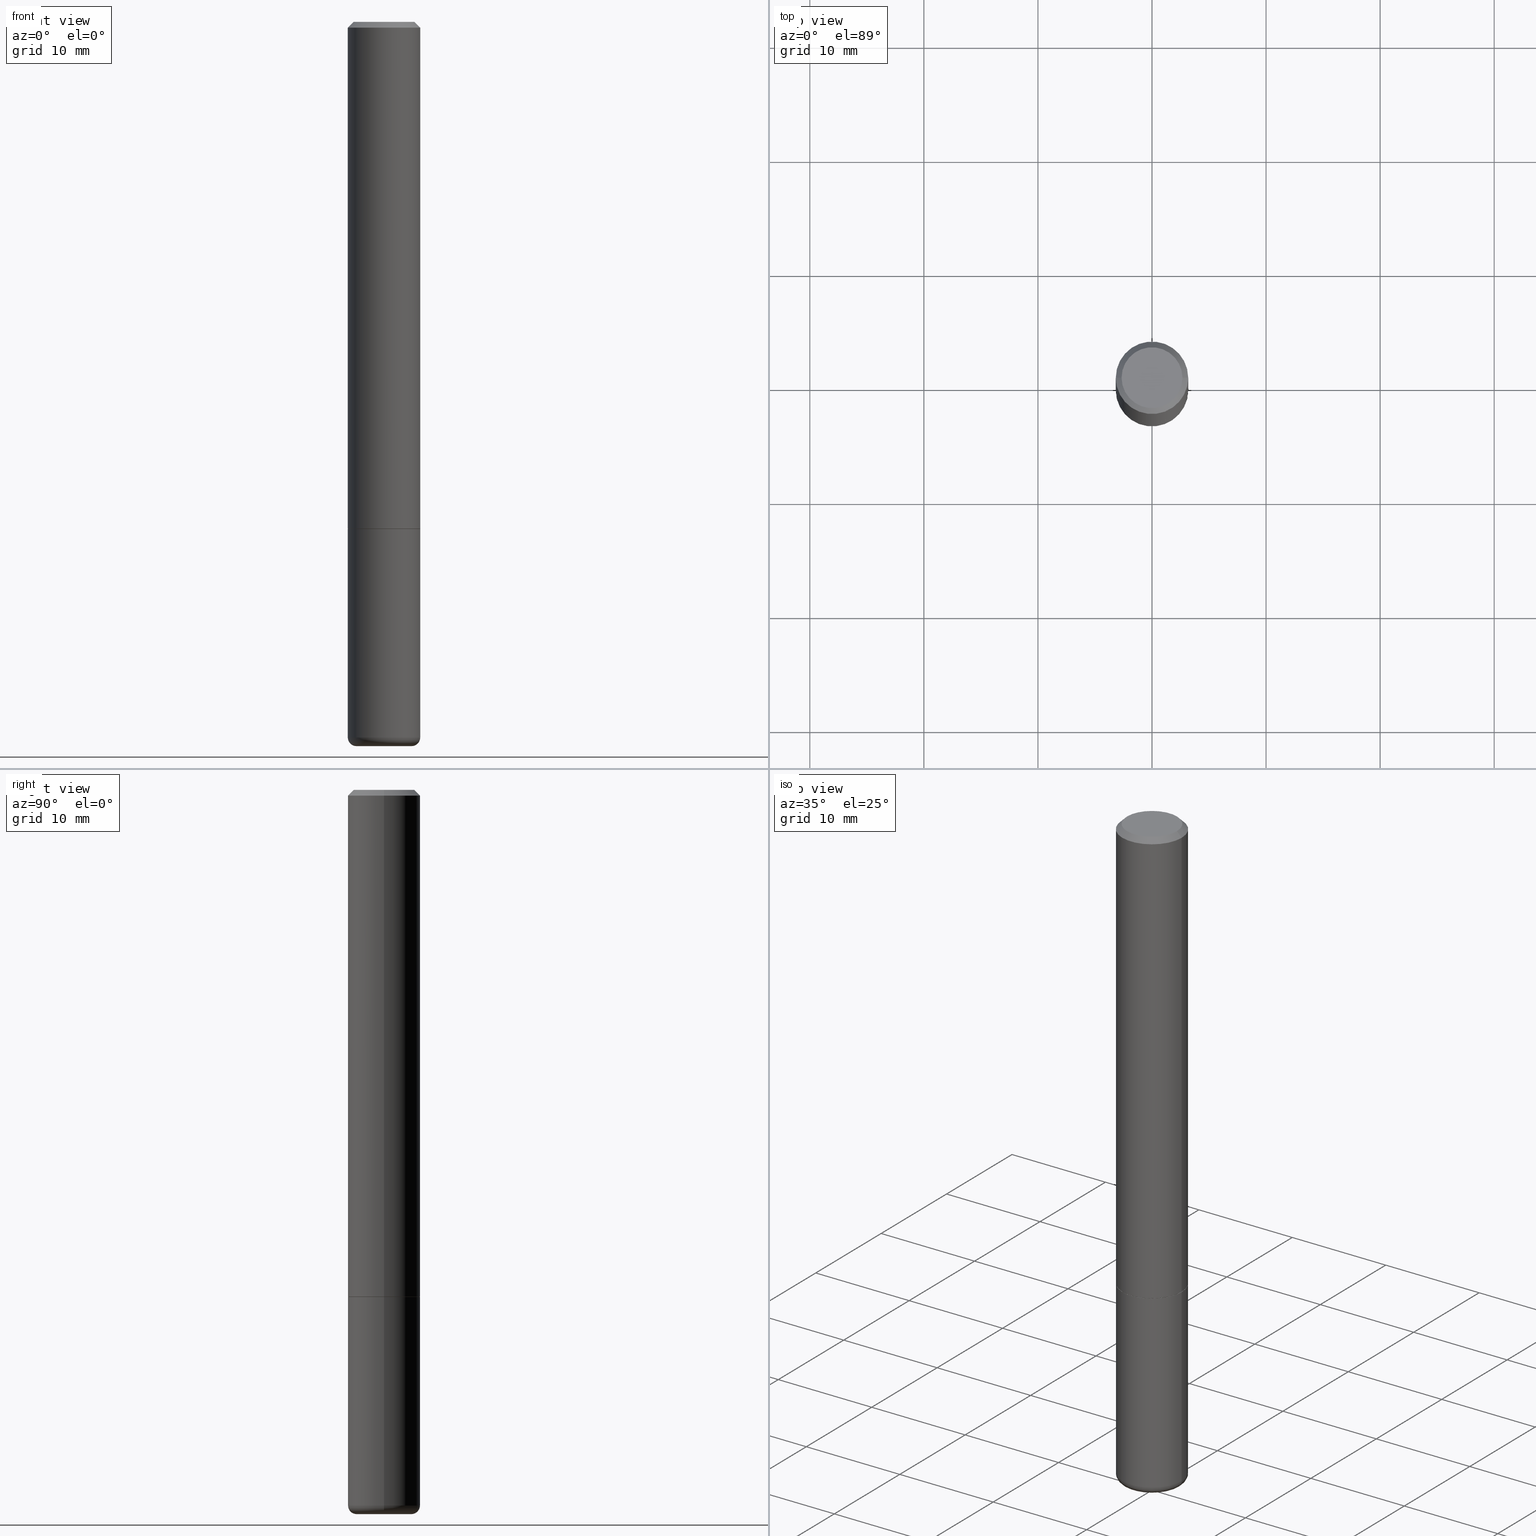
[diagram: canonical four-view strip — front | top / right | iso, engineering-drawing reading convention]
A machine part, canonical four-view strip (front | top / right | iso — engineering-drawing reading convention). The complete STEP part file that produces these views, byte-faithful:
ISO-10303-21;
HEADER;
FILE_DESCRIPTION (( 'STEP AP203' ),
    '1' );
FILE_NAME ('77121.STEP',
    '2024-03-06T16:03:30',
    ( '' ),
    ( '' ),
    'SwSTEP 2.0',
    'SolidWorks 2023',
    '' );
FILE_SCHEMA (( 'CONFIG_CONTROL_DESIGN' ));
ENDSEC;

DATA;
#1 = CARTESIAN_POINT ( 'NONE',  ( 0.000000000000000000, 0.000000000000000000, 0.000000000000000000 ) ) ;
#2 = CIRCLE ( 'NONE', #172, 0.1239999999999999991 ) ;
#3 = PERSON_AND_ORGANIZATION ( #24, #7 ) ;
#4 = COORDINATED_UNIVERSAL_TIME_OFFSET ( 5, 0, .BEHIND. ) ;
#5 = DATE_AND_TIME ( #40, #278 ) ;
#6 = AXIS2_PLACEMENT_3D ( 'NONE', #9, #111, #242 ) ;
#7 = ORGANIZATION ( 'UNSPECIFIED', 'UNSPECIFIED', '' ) ;
#8 = EDGE_LOOP ( 'NONE', ( #301, #102 ) ) ;
#9 = CARTESIAN_POINT ( 'NONE',  ( -0.09499999999999998723, -7.948943307970475008E-15, -2.470000000000000195 ) ) ;
#10 = EDGE_LOOP ( 'NONE', ( #18, #191, #299, #162 ) ) ;
#11 = DIRECTION ( 'NONE',  ( -2.445468806185136597E-29, 3.491481338843145583E-15, 1.000000000000000000 ) ) ;
#12 = LINE ( 'NONE', #378, #349 ) ;
#13 = CIRCLE ( 'NONE', #297, 0.1250000000000000000 ) ;
#14 = FACE_OUTER_BOUND ( 'NONE', #46, .T. ) ;
#15 = ADVANCED_FACE ( 'NONE', ( #76 ), #238, .T. ) ;
#16 = ADVANCED_FACE ( 'NONE', ( #328 ), #403, .T. ) ;
#17 = ORIENTED_EDGE ( 'NONE', *, *, #356, .T. ) ;
#18 = ORIENTED_EDGE ( 'NONE', *, *, #352, .F. ) ;
#19 = DIRECTION ( 'NONE',  ( -1.000000000000000000, 6.982962677686265922E-15, -4.876176775795935793E-29 ) ) ;
#20 = CARTESIAN_POINT ( 'NONE',  ( 0.1239999999999999991, -6.975979715008601207E-15, -1.750000000000000000 ) ) ;
#21 = DIRECTION ( 'NONE',  ( 1.000000000000000000, -6.982962677686266711E-15, 4.876176775795935793E-29 ) ) ;
#22 = AXIS2_PLACEMENT_3D ( 'NONE', #64, #288, #156 ) ;
#23 = MANIFOLD_SOLID_BREP ( 'Body-Move/Copy2[2]', #121 ) ;
#24 = PERSON ( 'UNSPECIFIED', 'UNSPECIFIED', 'UNSPECIFIED', ('UNSPECIFIED'), ('UNSPECIFIED'), ('UNSPECIFIED') ) ;
#25 = CARTESIAN_POINT ( 'NONE',  ( 4.277124942017804562E-29, -6.106600861636661664E-15, -1.749000000000000110 ) ) ;
#26 = CARTESIAN_POINT ( 'NONE',  ( 1.252621697202263706E-45, -1.788411804456536750E-31, -5.122214988120493535E-17 ) ) ;
#27 = DIRECTION ( 'NONE',  ( 1.000000000000000000, -6.982962677686270655E-15, 0.000000000000000000 ) ) ;
#28 = CARTESIAN_POINT ( 'NONE',  ( 0.1250000000000000000, -6.982962677686288010E-15, -1.750000000000000222 ) ) ;
#29 = DIRECTION ( 'NONE',  ( 1.000000000000000000, -6.982962677686262766E-15, 0.000000000000000000 ) ) ;
#30 = DIRECTION ( 'NONE',  ( -2.445468806185136597E-29, 3.491481338843145583E-15, 1.000000000000000000 ) ) ;
#31 = AXIS2_PLACEMENT_3D ( 'NONE', #152, #312, #408 ) ;
#32 = DIRECTION ( 'NONE',  ( 1.000000000000000000, -6.982962677686262766E-15, 0.000000000000000000 ) ) ;
#33 = LINE ( 'NONE', #231, #195 ) ;
#34 = ORIENTED_EDGE ( 'NONE', *, *, #131, .T. ) ;
#35 = ORIENTED_EDGE ( 'NONE', *, *, #73, .T. ) ;
#36 = ADVANCED_FACE ( 'NONE', ( #77 ), #38, .T. ) ;
#37 = PERSON_AND_ORGANIZATION_ROLE ( 'creator' ) ;
#38 = TOROIDAL_SURFACE ( 'NONE', #272, 0.09499999999999998723, 0.02999999999999997807 ) ;
#39 = APPROVAL_ROLE ( '' ) ;
#40 = CALENDAR_DATE ( 2024, 6, 3 ) ;
#41 = ADVANCED_FACE ( 'NONE', ( #400 ), #87, .T. ) ;
#42 = ORIENTED_EDGE ( 'NONE', *, *, #289, .F. ) ;
#43 = AXIS2_PLACEMENT_3D ( 'NONE', #54, #176, #19 ) ;
#44 = CIRCLE ( 'NONE', #397, 0.1250000000000000000 ) ;
#45 = DATE_AND_TIME ( #212, #252 ) ;
#46 = EDGE_LOOP ( 'NONE', ( #359, #323 ) ) ;
#47 = ORIENTED_EDGE ( 'NONE', *, *, #208, .T. ) ;
#48 = CC_DESIGN_PERSON_AND_ORGANIZATION_ASSIGNMENT ( #126, #264, ( #262 ) ) ;
#49 = EDGE_LOOP ( 'NONE', ( #290, #34 ) ) ;
#50 = VECTOR ( 'NONE', #300, 39.37007874015748143 ) ;
#51 = SECURITY_CLASSIFICATION ( '', '', #205 ) ;
#52 = APPROVAL_STATUS ( 'not_yet_approved' ) ;
#53 = ORIENTED_EDGE ( 'NONE', *, *, #78, .T. ) ;
#54 = CARTESIAN_POINT ( 'NONE',  ( 4.279570410823989044E-29, -6.110092342975505460E-15, -1.750000000000000222 ) ) ;
#55 = FACE_OUTER_BOUND ( 'NONE', #257, .T. ) ;
#56 = FACE_OUTER_BOUND ( 'NONE', #353, .T. ) ;
#57 = VECTOR ( 'NONE', #351, 39.37007874015748143 ) ;
#58 = CARTESIAN_POINT ( 'NONE',  ( 4.890937612370288923E-31, -6.982962677686312563E-17, -0.02000000000000006287 ) ) ;
#59 = CARTESIAN_POINT ( 'NONE',  ( -0.1250000000000001943, -2.200036824506633304E-15, -1.749000000000000110 ) ) ;
#60 = DIRECTION ( 'NONE',  ( -0.7071067811866863506, 7.493145998870855876E-15, 0.7071067811864086838 ) ) ;
#61 = LINE ( 'NONE', #374, #251 ) ;
#62 = ADVANCED_FACE ( 'NONE', ( #81 ), #209, .T. ) ;
#63 = EDGE_CURVE ( 'NONE', #381, #139, #113, .T. ) ;
#64 = CARTESIAN_POINT ( 'NONE',  ( 4.279570410823989044E-29, -6.110092342975505460E-15, -1.750000000000000222 ) ) ;
#65 = CIRCLE ( 'NONE', #354, 0.02999999999999997113 ) ;
#66 = EDGE_CURVE ( 'NONE', #366, #265, #394, .T. ) ;
#67 = VERTEX_POINT ( 'NONE', #223 ) ;
#68 = AXIS2_PLACEMENT_3D ( 'NONE', #222, #214, #21 ) ;
#69 = ORIENTED_EDGE ( 'NONE', *, *, #179, .F. ) ;
#70 = APPROVAL_STATUS ( 'not_yet_approved' ) ;
#71 = ORIENTED_EDGE ( 'NONE', *, *, #163, .F. ) ;
#72 = CARTESIAN_POINT ( 'NONE',  ( 0.1250000000000000555, -8.728703347107838319E-16, 6.095220969744923244E-30 ) ) ;
#73 = EDGE_CURVE ( 'NONE', #97, #366, #33, .T. ) ;
#74 = ORIENTED_EDGE ( 'NONE', *, *, #99, .T. ) ;
#75 = CARTESIAN_POINT ( 'NONE',  ( 0.1239999999999999991, -6.975979715008601207E-15, -1.750000000000000000 ) ) ;
#76 = FACE_OUTER_BOUND ( 'NONE', #193, .T. ) ;
#77 = FACE_OUTER_BOUND ( 'NONE', #271, .T. ) ;
#78 = EDGE_CURVE ( 'NONE', #104, #381, #320, .T. ) ;
#79 = APPROVAL_ROLE ( '' ) ;
#80 = DIRECTION ( 'NONE',  ( 1.000000000000000000, -6.982962677686273021E-15, 4.883557194083114583E-29 ) ) ;
#81 = FACE_OUTER_BOUND ( 'NONE', #270, .T. ) ;
#82 = DIRECTION ( 'NONE',  ( 1.000000000000000000, -6.982962677686273021E-15, 4.883557194083114583E-29 ) ) ;
#83 = CARTESIAN_POINT ( 'NONE',  ( 6.113672015462842613E-29, -8.728703347107864943E-15, -2.500000000000000000 ) ) ;
#84 = UNCERTAINTY_MEASURE_WITH_UNIT (LENGTH_MEASURE( 1.000000000000000082E-05 ), #380, 'distance_accuracy_value', 'NONE');
#85 = CYLINDRICAL_SURFACE ( 'NONE', #180, 0.1250000000000000555 ) ;
#86 = DIRECTION ( 'NONE',  ( 1.000000000000000000, -6.982962677686267499E-15, 0.000000000000000000 ) ) ;
#87 = CONICAL_SURFACE ( 'NONE', #219, 0.1249999999999999584, 0.7853981633974460586 ) ;
#88 = AXIS2_PLACEMENT_3D ( 'NONE', #253, #151, #317 ) ;
#89 = CARTESIAN_POINT ( 'NONE',  ( 0.1250000000000001943, -6.979471196347446580E-15, -1.749000000000000110 ) ) ;
#90 = DIRECTION ( 'NONE',  ( 1.000000000000000000, -6.982962677686273021E-15, 0.000000000000000000 ) ) ;
#91 =( NAMED_UNIT ( * ) SI_UNIT ( $, .STERADIAN. ) SOLID_ANGLE_UNIT ( ) );
#92 = ORIENTED_EDGE ( 'NONE', *, *, #226, .F. ) ;
#93 = CARTESIAN_POINT ( 'NONE',  ( 4.890937612370288923E-31, -6.982962677686312563E-17, -0.02000000000000006287 ) ) ;
#94 = AXIS2_PLACEMENT_3D ( 'NONE', #83, #399, #134 ) ;
#95 = PRODUCT_DEFINITION_FORMATION_WITH_SPECIFIED_SOURCE ( 'ANY', '', #262, .NOT_KNOWN. ) ;
#96 = CONICAL_SURFACE ( 'NONE', #286, 0.1239999999999999991, 0.7853981633976446775 ) ;
#97 = VERTEX_POINT ( 'NONE', #360 ) ;
#98 = LOCAL_TIME ( 11, 3, 30.00000000000000000, #4 ) ;
#99 = EDGE_CURVE ( 'NONE', #139, #366, #12, .T. ) ;
#100 = CC_DESIGN_PERSON_AND_ORGANIZATION_ASSIGNMENT ( #327, #170, ( #95 ) ) ;
#101 = CALENDAR_DATE ( 2024, 6, 3 ) ;
#102 = ORIENTED_EDGE ( 'NONE', *, *, #194, .F. ) ;
#103 = CARTESIAN_POINT ( 'NONE',  ( -0.1250000000000000000, -6.478847205258913284E-15, -1.750000000000000222 ) ) ;
#104 = VERTEX_POINT ( 'NONE', #20 ) ;
#105 = ADVANCED_FACE ( 'NONE', ( #14 ), #258, .F. ) ;
#106 = ORIENTED_EDGE ( 'NONE', *, *, #401, .F. ) ;
#107 = AXIS2_PLACEMENT_3D ( 'NONE', #93, #190, #282 ) ;
#108 = APPROVAL_PERSON_ORGANIZATION ( #332, #187, #79 ) ;
#109 = DATE_TIME_ROLE ( 'classification_date' ) ;
#110 = ORIENTED_EDGE ( 'NONE', *, *, #66, .T. ) ;
#111 = DIRECTION ( 'NONE',  ( 7.105427357601001859E-15, 1.000000000000000000, -3.491481338843145583E-15 ) ) ;
#112 = ORIENTED_EDGE ( 'NONE', *, *, #78, .F. ) ;
#113 = CIRCLE ( 'NONE', #245, 0.1250000000000001943 ) ;
#114 = AXIS2_PLACEMENT_3D ( 'NONE', #1, #196, #161 ) ;
#115 = DIRECTION ( 'NONE',  ( -2.445468806185136877E-29, 3.491481338843145188E-15, 1.000000000000000000 ) ) ;
#116 = CARTESIAN_POINT ( 'NONE',  ( -0.09499999999999998723, -7.894734117689107359E-15, -2.500000000000000000 ) ) ;
#117 = CARTESIAN_POINT ( 'NONE',  ( 4.279570410823989044E-29, -6.110092342975505460E-15, -1.750000000000000222 ) ) ;
#118 = CARTESIAN_POINT ( 'NONE',  ( 4.277124942017804562E-29, -6.106600861636661664E-15, -1.749000000000000110 ) ) ;
#119 = CARTESIAN_POINT ( 'NONE',  ( 6.113672015462842613E-29, -8.728703347107864943E-15, -2.500000000000000000 ) ) ;
#120 = ADVANCED_FACE ( 'NONE', ( #281 ), #85, .T. ) ;
#121 = CLOSED_SHELL ( 'NONE', ( #167, #15, #382, #41, #120, #16, #302, #105 ) ) ;
#122 = CC_DESIGN_APPROVAL ( #187, ( #51 ) ) ;
#123 = CARTESIAN_POINT ( 'NONE',  ( 1.252621697202263706E-45, -1.788411804456536750E-31, -5.122214988120493535E-17 ) ) ;
#124 = DIRECTION ( 'NONE',  ( -2.445468806185136597E-29, 3.491481338843145583E-15, 1.000000000000000000 ) ) ;
#125 = ORIENTED_EDGE ( 'NONE', *, *, #226, .T. ) ;
#126 = PERSON_AND_ORGANIZATION ( #24, #7 ) ;
#127 = CIRCLE ( 'NONE', #237, 0.1050000000000000377 ) ;
#128 = VECTOR ( 'NONE', #60, 39.37007874015748143 ) ;
#129 = EDGE_LOOP ( 'NONE', ( #42, #202, #305, #232 ) ) ;
#130 = CARTESIAN_POINT ( 'NONE',  ( 7.332110811570581229E-16, 0.1050000000000000377, -3.922166155191328542E-16 ) ) ;
#131 = EDGE_CURVE ( 'NONE', #236, #197, #13, .T. ) ;
#132 = TOROIDAL_SURFACE ( 'NONE', #414, 0.09499999999999998723, 0.02999999999999997807 ) ;
#133 = ORIENTED_EDGE ( 'NONE', *, *, #234, .F. ) ;
#134 = DIRECTION ( 'NONE',  ( -1.000000000000000000, 6.982962677686265922E-15, -4.876176775795935793E-29 ) ) ;
#135 = ORIENTED_EDGE ( 'NONE', *, *, #352, .T. ) ;
#136 = CARTESIAN_POINT ( 'NONE',  ( 6.040307951277287977E-29, -8.623958906942569995E-15, -2.470000000000000195 ) ) ;
#137 = EDGE_LOOP ( 'NONE', ( #165, #335, #307, #158 ) ) ;
#138 = COORDINATED_UNIVERSAL_TIME_OFFSET ( 5, 0, .BEHIND. ) ;
#139 = VERTEX_POINT ( 'NONE', #59 ) ;
#140 = VECTOR ( 'NONE', #146, 39.37007874015748143 ) ;
#141 = EDGE_LOOP ( 'NONE', ( #322, #92 ) ) ;
#142 = CARTESIAN_POINT ( 'NONE',  ( 4.279570410823988484E-29, -6.110092342975504671E-15, -1.750000000000000000 ) ) ;
#143 = CIRCLE ( 'NONE', #384, 0.1050000000000000377 ) ;
#144 = DIRECTION ( 'NONE',  ( -2.445468806185136597E-29, 3.491481338843145583E-15, 1.000000000000000000 ) ) ;
#145 =( NAMED_UNIT ( * ) PLANE_ANGLE_UNIT ( ) SI_UNIT ( $, .RADIAN. ) );
#146 = DIRECTION ( 'NONE',  ( 0.7071067811866863506, -2.468850131083710931E-15, 0.7071067811864086838 ) ) ;
#147 = CARTESIAN_POINT ( 'NONE',  ( 6.040307951277287977E-29, -8.623958906942569995E-15, -2.470000000000000195 ) ) ;
#148 = ADVANCED_FACE ( 'NONE', ( #55 ), #132, .T. ) ;
#149 = DIRECTION ( 'NONE',  ( 1.000000000000000000, -6.982962677686267499E-15, 4.874400871621236533E-29 ) ) ;
#150 = DIRECTION ( 'NONE',  ( 1.000000000000000000, -6.982962677686267499E-15, 0.000000000000000000 ) ) ;
#151 = DIRECTION ( 'NONE',  ( 2.445468806185136597E-29, -3.491481338843145583E-15, -1.000000000000000000 ) ) ;
#152 = CARTESIAN_POINT ( 'NONE',  ( 0.000000000000000000, 0.000000000000000000, 0.000000000000000000 ) ) ;
#153 = AXIS2_PLACEMENT_3D ( 'NONE', #206, #330, #365 ) ;
#154 = DIRECTION ( 'NONE',  ( -2.445468806185136597E-29, 3.491481338843145583E-15, 1.000000000000000000 ) ) ;
#155 = LOCAL_TIME ( 11, 3, 30.00000000000000000, #294 ) ;
#156 = DIRECTION ( 'NONE',  ( 1.000000000000000000, -6.982962677686265922E-15, 4.876176775795935793E-29 ) ) ;
#157 = PRODUCT_RELATED_PRODUCT_CATEGORY ( 'detail', '', ( #262 ) ) ;
#158 = ORIENTED_EDGE ( 'NONE', *, *, #66, .F. ) ;
#159 = DATE_AND_TIME ( #101, #98 ) ;
#160 = ADVANCED_FACE ( 'NONE', ( #310 ), #255, .T. ) ;
#161 = DIRECTION ( 'NONE',  ( 1.000000000000000000, 0.000000000000000000, 0.000000000000000000 ) ) ;
#162 = ORIENTED_EDGE ( 'NONE', *, *, #131, .F. ) ;
#163 = EDGE_CURVE ( 'NONE', #393, #265, #61, .T. ) ;
#164 = AXIS2_PLACEMENT_3D ( 'NONE', #177, #182, #415 ) ;
#165 = ORIENTED_EDGE ( 'NONE', *, *, #99, .F. ) ;
#166 = PLANE ( 'NONE',  #94 ) ;
#167 = ADVANCED_FACE ( 'NONE', ( #56 ), #96, .T. ) ;
#168 = APPROVAL_DATE_TIME ( #45, #187 ) ;
#169 = ORIENTED_EDGE ( 'NONE', *, *, #355, .F. ) ;
#170 = PERSON_AND_ORGANIZATION_ROLE ( 'design_supplier' ) ;
#171 = ORIENTED_EDGE ( 'NONE', *, *, #376, .T. ) ;
#172 = AXIS2_PLACEMENT_3D ( 'NONE', #142, #404, #276 ) ;
#173 = COORDINATED_UNIVERSAL_TIME_OFFSET ( 5, 0, .BEHIND. ) ;
#174 = CC_DESIGN_PERSON_AND_ORGANIZATION_ASSIGNMENT ( #358, #201, ( #95 ) ) ;
#175 = VERTEX_POINT ( 'NONE', #410 ) ;
#176 = DIRECTION ( 'NONE',  ( 2.438088387897960049E-29, -3.491481338843145188E-15, -1.000000000000000000 ) ) ;
#177 = CARTESIAN_POINT ( 'NONE',  ( 6.113672015462842613E-29, -8.728703347107864943E-15, -2.500000000000000000 ) ) ;
#178 = APPLICATION_CONTEXT ( 'configuration controlled 3d designs of mechanical parts and assemblies' ) ;
#179 = EDGE_CURVE ( 'NONE', #139, #381, #318, .T. ) ;
#180 = AXIS2_PLACEMENT_3D ( 'NONE', #338, #412, #279 ) ;
#181 = FACE_OUTER_BOUND ( 'NONE', #49, .T. ) ;
#182 = DIRECTION ( 'NONE',  ( -2.445468806185136597E-29, 3.491481338843145583E-15, 1.000000000000000000 ) ) ;
#183 = DIRECTION ( 'NONE',  ( -2.445468806185136597E-29, 3.491481338843145583E-15, 1.000000000000000000 ) ) ;
#184 = CIRCLE ( 'NONE', #164, 0.09499999999999998723 ) ;
#185 = CARTESIAN_POINT ( 'NONE',  ( 4.279570410823989044E-29, -6.110092342975505460E-15, -1.750000000000000222 ) ) ;
#186 = LINE ( 'NONE', #383, #57 ) ;
#187 = APPROVAL ( #52, 'UNSPECIFIED' ) ;
#188 = DIRECTION ( 'NONE',  ( -2.445468806185136877E-29, 3.491481338843145188E-15, 1.000000000000000000 ) ) ;
#189 = ORIENTED_EDGE ( 'NONE', *, *, #63, .F. ) ;
#190 = DIRECTION ( 'NONE',  ( -2.445468806185136597E-29, 3.491481338843145583E-15, 1.000000000000000000 ) ) ;
#191 = ORIENTED_EDGE ( 'NONE', *, *, #401, .T. ) ;
#192 = PERSON_AND_ORGANIZATION ( #24, #7 ) ;
#193 = EDGE_LOOP ( 'NONE', ( #362, #74, #169, #133 ) ) ;
#194 = EDGE_CURVE ( 'NONE', #199, #229, #184, .T. ) ;
#195 = VECTOR ( 'NONE', #406, 39.37007874015748143 ) ;
#196 = DIRECTION ( 'NONE',  ( 0.000000000000000000, 0.000000000000000000, 1.000000000000000000 ) ) ;
#197 = VERTEX_POINT ( 'NONE', #28 ) ;
#198 = COORDINATED_UNIVERSAL_TIME_OFFSET ( 5, 0, .BEHIND. ) ;
#199 = VERTEX_POINT ( 'NONE', #116 ) ;
#200 = LINE ( 'NONE', #72, #277 ) ;
#201 = PERSON_AND_ORGANIZATION_ROLE ( 'creator' ) ;
#202 = ORIENTED_EDGE ( 'NONE', *, *, #163, .T. ) ;
#203 = AXIS2_PLACEMENT_3D ( 'NONE', #136, #311, #233 ) ;
#204 = DIRECTION ( 'NONE',  ( -2.445468806185136597E-29, 3.491481338843145583E-15, 1.000000000000000000 ) ) ;
#205 = SECURITY_CLASSIFICATION_LEVEL ( 'unclassified' ) ;
#206 = CARTESIAN_POINT ( 'NONE',  ( 4.279570410823988484E-29, -6.110092342975504671E-15, -1.750000000000000000 ) ) ;
#207 = CARTESIAN_POINT ( 'NONE',  ( 4.890937612370288923E-31, -6.982962677686312563E-17, -0.02000000000000006287 ) ) ;
#208 = EDGE_CURVE ( 'NONE', #229, #398, #65, .T. ) ;
#209 = CYLINDRICAL_SURFACE ( 'NONE', #31, 0.1250000000000000000 ) ;
#210 = CLOSED_SHELL ( 'NONE', ( #62, #148, #224, #160, #36, #273 ) ) ;
#211 = CC_DESIGN_SECURITY_CLASSIFICATION ( #51, ( #95 ) ) ;
#212 = CALENDAR_DATE ( 2024, 6, 3 ) ;
#213 = DIRECTION ( 'NONE',  ( 1.000000000000000000, -6.982962677686267499E-15, 0.000000000000000000 ) ) ;
#214 = DIRECTION ( 'NONE',  ( -2.445468806185136597E-29, 3.491481338843145583E-15, 1.000000000000000000 ) ) ;
#215 = ADVANCED_BREP_SHAPE_REPRESENTATION ( '77121', ( #309, #23, #114 ), #292 ) ;
#216 = DIRECTION ( 'NONE',  ( 0.7071067811865459074, -7.319954787623249734E-15, -0.7071067811865491270 ) ) ;
#217 = DIRECTION ( 'NONE',  ( 1.000000000000000000, -6.982962677686267499E-15, 4.874400871621236533E-29 ) ) ;
#218 = CIRCLE ( 'NONE', #304, 0.1250000000000000000 ) ;
#219 = AXIS2_PLACEMENT_3D ( 'NONE', #207, #243, #368 ) ;
#220 = DIRECTION ( 'NONE',  ( -2.445468806185136597E-29, 3.491481338843145583E-15, 1.000000000000000000 ) ) ;
#221 = DIRECTION ( 'NONE',  ( -2.445468806185136597E-29, 3.491481338843145583E-15, 1.000000000000000000 ) ) ;
#222 = CARTESIAN_POINT ( 'NONE',  ( 0.000000000000000000, 0.000000000000000000, 0.000000000000000000 ) ) ;
#223 = CARTESIAN_POINT ( 'NONE',  ( -0.1249999999999999861, -7.735780487242444763E-15, -2.470000000000000195 ) ) ;
#224 = ADVANCED_FACE ( 'NONE', ( #181 ), #296, .F. ) ;
#225 = AXIS2_PLACEMENT_3D ( 'NONE', #58, #372, #150 ) ;
#226 = EDGE_CURVE ( 'NONE', #175, #104, #2, .T. ) ;
#227 = EDGE_LOOP ( 'NONE', ( #71, #334, #35, #110 ) ) ;
#228 = PERSON_AND_ORGANIZATION ( #24, #7 ) ;
#229 = VERTEX_POINT ( 'NONE', #306 ) ;
#230 = APPROVAL_DATE_TIME ( #5, #254 ) ;
#231 = CARTESIAN_POINT ( 'NONE',  ( -0.1249999999999999584, 8.030407079339200406E-16, -0.02000000000000006287 ) ) ;
#232 = ORIENTED_EDGE ( 'NONE', *, *, #73, .F. ) ;
#233 = DIRECTION ( 'NONE',  ( 1.000000000000000000, -6.982962677686270655E-15, 0.000000000000000000 ) ) ;
#234 = EDGE_CURVE ( 'NONE', #381, #265, #200, .T. ) ;
#235 = MECHANICAL_CONTEXT ( 'NONE', #413, 'mechanical' ) ;
#236 = VERTEX_POINT ( 'NONE', #103 ) ;
#237 = AXIS2_PLACEMENT_3D ( 'NONE', #26, #220, #149 ) ;
#238 = CYLINDRICAL_SURFACE ( 'NONE', #363, 0.1250000000000000555 ) ;
#239 = AXIS2_PLACEMENT_3D ( 'NONE', #119, #124, #90 ) ;
#240 = ORIENTED_EDGE ( 'NONE', *, *, #208, .F. ) ;
#241 = CC_DESIGN_DATE_AND_TIME_ASSIGNMENT ( #159, #293, ( #387 ) ) ;
#242 = DIRECTION ( 'NONE',  ( -1.000000000000000000, 7.105427357600997914E-15, 0.000000000000000000 ) ) ;
#243 = DIRECTION ( 'NONE',  ( 2.445468806185136597E-29, -3.491481338843145583E-15, -1.000000000000000000 ) ) ;
#244 = PERSON_AND_ORGANIZATION_ROLE ( 'classification_officer' ) ;
#245 = AXIS2_PLACEMENT_3D ( 'NONE', #118, #221, #86 ) ;
#246 = LOCAL_TIME ( 11, 3, 30.00000000000000000, #138 ) ;
#247 = EDGE_CURVE ( 'NONE', #398, #67, #313, .T. ) ;
#248 = CARTESIAN_POINT ( 'NONE',  ( 0.1249999999999999584, -9.273918764983043491E-16, -0.02000000000000006287 ) ) ;
#249 = DIRECTION ( 'NONE',  ( 1.000000000000000000, -6.982962677686262766E-15, 0.000000000000000000 ) ) ;
#250 = LINE ( 'NONE', #377, #128 ) ;
#251 = VECTOR ( 'NONE', #216, 39.37007874015748143 ) ;
#252 = LOCAL_TIME ( 11, 3, 30.00000000000000000, #173 ) ;
#253 = CARTESIAN_POINT ( 'NONE',  ( 4.890937612370288923E-31, -6.982962677686312563E-17, -0.02000000000000006287 ) ) ;
#254 = APPROVAL ( #70, 'UNSPECIFIED' ) ;
#255 = CYLINDRICAL_SURFACE ( 'NONE', #68, 0.1250000000000000000 ) ;
#256 = APPLICATION_PROTOCOL_DEFINITION ( 'international standard', 'config_control_design', 1994, #413 ) ;
#257 = EDGE_LOOP ( 'NONE', ( #171, #391, #326, #240 ) ) ;
#258 = PLANE ( 'NONE',  #267 ) ;
#259 = APPROVAL_PERSON_ORGANIZATION ( #228, #417, #39 ) ;
#260 = APPROVAL_STATUS ( 'not_yet_approved' ) ;
#261 = ORIENTED_EDGE ( 'NONE', *, *, #370, .F. ) ;
#262 = PRODUCT ( '77121', '77121', '', ( #235 ) ) ;
#263 = CALENDAR_DATE ( 2024, 6, 3 ) ;
#264 = PERSON_AND_ORGANIZATION_ROLE ( 'design_owner' ) ;
#265 = VERTEX_POINT ( 'NONE', #248 ) ;
#266 = CARTESIAN_POINT ( 'NONE',  ( 0.1250000000000000000, -8.728703347107833388E-16, 6.095220969744919741E-30 ) ) ;
#267 = AXIS2_PLACEMENT_3D ( 'NONE', #130, #341, #346 ) ;
#268 = DIRECTION ( 'NONE',  ( 1.000000000000000000, -6.982962677686267499E-15, 4.876176775795936353E-29 ) ) ;
#269 = CC_DESIGN_DATE_AND_TIME_ASSIGNMENT ( #308, #109, ( #51 ) ) ;
#270 = EDGE_LOOP ( 'NONE', ( #295, #135, #261, #390 ) ) ;
#271 = EDGE_LOOP ( 'NONE', ( #386, #325, #47, #106 ) ) ;
#272 = AXIS2_PLACEMENT_3D ( 'NONE', #303, #11, #80 ) ;
#273 = ADVANCED_FACE ( 'NONE', ( #373 ), #166, .T. ) ;
#274 = ORIENTED_EDGE ( 'NONE', *, *, #402, .T. ) ;
#275 = CARTESIAN_POINT ( 'NONE',  ( 0.000000000000000000, 0.000000000000000000, 0.000000000000000000 ) ) ;
#276 = DIRECTION ( 'NONE',  ( 1.000000000000000000, -6.982962677686262766E-15, 0.000000000000000000 ) ) ;
#277 = VECTOR ( 'NONE', #115, 39.37007874015748143 ) ;
#278 = LOCAL_TIME ( 11, 3, 30.00000000000000000, #198 ) ;
#279 = DIRECTION ( 'NONE',  ( 1.000000000000000000, -6.982962677686267499E-15, 4.876176775795936353E-29 ) ) ;
#280 = FACE_OUTER_BOUND ( 'NONE', #141, .T. ) ;
#281 = FACE_OUTER_BOUND ( 'NONE', #137, .T. ) ;
#282 = DIRECTION ( 'NONE',  ( 1.000000000000000000, -6.982962677686267499E-15, 0.000000000000000000 ) ) ;
#283 =( LENGTH_UNIT ( ) NAMED_UNIT ( * ) SI_UNIT ( $, .METRE. ) );
#284 = EDGE_CURVE ( 'NONE', #398, #197, #339, .T. ) ;
#285 = EDGE_CURVE ( 'NONE', #199, #67, #329, .T. ) ;
#286 = AXIS2_PLACEMENT_3D ( 'NONE', #314, #183, #29 ) ;
#287 = CARTESIAN_POINT ( 'NONE',  ( 0.1050000000000000377, -8.238720831321576644E-16, -5.122214988119949344E-17 ) ) ;
#288 = DIRECTION ( 'NONE',  ( -2.438088387897960049E-29, 3.491481338843145188E-15, 1.000000000000000000 ) ) ;
#289 = EDGE_CURVE ( 'NONE', #393, #97, #143, .T. ) ;
#290 = ORIENTED_EDGE ( 'NONE', *, *, #370, .T. ) ;
#291 = CIRCLE ( 'NONE', #107, 0.1249999999999999584 ) ;
#292 =( GEOMETRIC_REPRESENTATION_CONTEXT ( 3 ) GLOBAL_UNCERTAINTY_ASSIGNED_CONTEXT ( ( #84 ) ) GLOBAL_UNIT_ASSIGNED_CONTEXT ( ( #380, #145, #91 ) ) REPRESENTATION_CONTEXT ( 'NONE', 'WORKASPACE' ) );
#293 = DATE_TIME_ROLE ( 'creation_date' ) ;
#294 = COORDINATED_UNIVERSAL_TIME_OFFSET ( 5, 0, .BEHIND. ) ;
#295 = ORIENTED_EDGE ( 'NONE', *, *, #247, .T. ) ;
#296 = PLANE ( 'NONE',  #43 ) ;
#297 = AXIS2_PLACEMENT_3D ( 'NONE', #185, #319, #379 ) ;
#298 = CONICAL_SURFACE ( 'NONE', #88, 0.1249999999999999584, 0.7853981633974460586 ) ;
#299 = ORIENTED_EDGE ( 'NONE', *, *, #284, .T. ) ;
#300 = DIRECTION ( 'NONE',  ( -2.445468806185136877E-29, 3.491481338843145188E-15, 1.000000000000000000 ) ) ;
#301 = ORIENTED_EDGE ( 'NONE', *, *, #376, .F. ) ;
#302 = ADVANCED_FACE ( 'NONE', ( #280 ), #418, .F. ) ;
#303 = CARTESIAN_POINT ( 'NONE',  ( 6.040307951277287977E-29, -8.623958906942569995E-15, -2.470000000000000195 ) ) ;
#304 = AXIS2_PLACEMENT_3D ( 'NONE', #117, #315, #249 ) ;
#305 = ORIENTED_EDGE ( 'NONE', *, *, #355, .T. ) ;
#306 = CARTESIAN_POINT ( 'NONE',  ( 0.09499999999999998723, -9.392084801488059965E-15, -2.500000000000000000 ) ) ;
#307 = ORIENTED_EDGE ( 'NONE', *, *, #234, .T. ) ;
#308 = DATE_AND_TIME ( #392, #246 ) ;
#309 = MANIFOLD_SOLID_BREP ( 'Body-Move/Copy2[1]', #210 ) ;
#310 = FACE_OUTER_BOUND ( 'NONE', #10, .T. ) ;
#311 = DIRECTION ( 'NONE',  ( -2.445468806185136597E-29, 3.491481338843145583E-15, 1.000000000000000000 ) ) ;
#312 = DIRECTION ( 'NONE',  ( -2.445468806185136597E-29, 3.491481338843145583E-15, 1.000000000000000000 ) ) ;
#313 = CIRCLE ( 'NONE', #203, 0.1250000000000000000 ) ;
#314 = CARTESIAN_POINT ( 'NONE',  ( 4.279570410823988484E-29, -6.110092342975504671E-15, -1.750000000000000000 ) ) ;
#315 = DIRECTION ( 'NONE',  ( -2.445468806185136597E-29, 3.491481338843145583E-15, 1.000000000000000000 ) ) ;
#316 = CC_DESIGN_PERSON_AND_ORGANIZATION_ASSIGNMENT ( #192, #37, ( #387 ) ) ;
#317 = DIRECTION ( 'NONE',  ( -1.000000000000000000, 6.982962677686267499E-15, 0.000000000000000000 ) ) ;
#318 = CIRCLE ( 'NONE', #371, 0.1250000000000001943 ) ;
#319 = DIRECTION ( 'NONE',  ( -2.445468806185136597E-29, 3.491481338843145583E-15, 1.000000000000000000 ) ) ;
#320 = LINE ( 'NONE', #75, #140 ) ;
#321 = CARTESIAN_POINT ( 'NONE',  ( 4.279570410823988484E-29, -6.110092342975504671E-15, -1.750000000000000000 ) ) ;
#322 = ORIENTED_EDGE ( 'NONE', *, *, #356, .F. ) ;
#323 = ORIENTED_EDGE ( 'NONE', *, *, #289, .T. ) ;
#324 = DATE_AND_TIME ( #263, #155 ) ;
#325 = ORIENTED_EDGE ( 'NONE', *, *, #194, .T. ) ;
#326 = ORIENTED_EDGE ( 'NONE', *, *, #247, .F. ) ;
#327 = PERSON_AND_ORGANIZATION ( #24, #7 ) ;
#328 = FACE_OUTER_BOUND ( 'NONE', #388, .T. ) ;
#329 = CIRCLE ( 'NONE', #6, 0.02999999999999997113 ) ;
#330 = DIRECTION ( 'NONE',  ( -2.445468806185136597E-29, 3.491481338843145583E-15, 1.000000000000000000 ) ) ;
#331 = EDGE_CURVE ( 'NONE', #97, #393, #127, .T. ) ;
#332 = PERSON_AND_ORGANIZATION ( #24, #7 ) ;
#333 = ORIENTED_EDGE ( 'NONE', *, *, #402, .F. ) ;
#334 = ORIENTED_EDGE ( 'NONE', *, *, #331, .F. ) ;
#335 = ORIENTED_EDGE ( 'NONE', *, *, #179, .T. ) ;
#336 = SHAPE_DEFINITION_REPRESENTATION ( #345, #215 ) ;
#337 = CC_DESIGN_PERSON_AND_ORGANIZATION_ASSIGNMENT ( #396, #244, ( #51 ) ) ;
#338 = CARTESIAN_POINT ( 'NONE',  ( 0.000000000000000000, 0.000000000000000000, 0.000000000000000000 ) ) ;
#339 = LINE ( 'NONE', #266, #50 ) ;
#340 = DESIGN_CONTEXT ( 'detailed design', #178, 'design' ) ;
#341 = DIRECTION ( 'NONE',  ( 2.438088387897960049E-29, -3.491481338843145188E-15, -1.000000000000000000 ) ) ;
#342 = LENGTH_MEASURE_WITH_UNIT ( LENGTH_MEASURE( 0.02539999999999999897 ), #283 );
#343 = CIRCLE ( 'NONE', #395, 0.1239999999999999991 ) ;
#344 = DIRECTION ( 'NONE',  ( 1.000000000000000000, -6.982962677686274599E-15, 0.000000000000000000 ) ) ;
#345 = PRODUCT_DEFINITION_SHAPE ( 'NONE', 'NONE',  #387 ) ;
#346 = DIRECTION ( 'NONE',  ( -1.000000000000000000, 6.982962677686265922E-15, -4.876176775795935793E-29 ) ) ;
#347 = FACE_OUTER_BOUND ( 'NONE', #129, .T. ) ;
#348 = DIRECTION ( 'NONE',  ( -2.445468806185136597E-29, 3.491481338843145583E-15, 1.000000000000000000 ) ) ;
#349 = VECTOR ( 'NONE', #188, 39.37007874015748143 ) ;
#350 = CC_DESIGN_APPROVAL ( #254, ( #95 ) ) ;
#351 = DIRECTION ( 'NONE',  ( -2.445468806185136877E-29, 3.491481338843145188E-15, 1.000000000000000000 ) ) ;
#352 = EDGE_CURVE ( 'NONE', #67, #236, #186, .T. ) ;
#353 = EDGE_LOOP ( 'NONE', ( #17, #274, #189, #112 ) ) ;
#354 = AXIS2_PLACEMENT_3D ( 'NONE', #369, #409, #344 ) ;
#355 = EDGE_CURVE ( 'NONE', #265, #366, #291, .T. ) ;
#356 = EDGE_CURVE ( 'NONE', #104, #175, #343, .T. ) ;
#357 = APPROVAL_ROLE ( '' ) ;
#358 = PERSON_AND_ORGANIZATION ( #24, #7 ) ;
#359 = ORIENTED_EDGE ( 'NONE', *, *, #331, .T. ) ;
#360 = CARTESIAN_POINT ( 'NONE',  ( -0.1050000000000000377, 7.681258945454890818E-16, -5.122214988121018004E-17 ) ) ;
#361 = APPROVAL_DATE_TIME ( #324, #417 ) ;
#362 = ORIENTED_EDGE ( 'NONE', *, *, #63, .T. ) ;
#363 = AXIS2_PLACEMENT_3D ( 'NONE', #275, #204, #268 ) ;
#364 = APPROVAL_PERSON_ORGANIZATION ( #3, #254, #357 ) ;
#365 = DIRECTION ( 'NONE',  ( 1.000000000000000000, -6.982962677686262766E-15, 0.000000000000000000 ) ) ;
#366 = VERTEX_POINT ( 'NONE', #407 ) ;
#367 = DIMENSIONAL_EXPONENTS ( 1.000000000000000000, 0.000000000000000000, 0.000000000000000000, 0.000000000000000000, 0.000000000000000000, 0.000000000000000000, 0.000000000000000000 ) ;
#368 = DIRECTION ( 'NONE',  ( -1.000000000000000000, 6.982962677686267499E-15, 0.000000000000000000 ) ) ;
#369 = CARTESIAN_POINT ( 'NONE',  ( 0.09499999999999998723, -9.287340361322766595E-15, -2.470000000000000195 ) ) ;
#370 = EDGE_CURVE ( 'NONE', #197, #236, #218, .T. ) ;
#371 = AXIS2_PLACEMENT_3D ( 'NONE', #25, #154, #213 ) ;
#372 = DIRECTION ( 'NONE',  ( -2.445468806185136597E-29, 3.491481338843145583E-15, 1.000000000000000000 ) ) ;
#373 = FACE_OUTER_BOUND ( 'NONE', #8, .T. ) ;
#374 = CARTESIAN_POINT ( 'NONE',  ( 0.1249999999999999584, -9.273918764983043491E-16, -0.02000000000000006287 ) ) ;
#375 = CARTESIAN_POINT ( 'NONE',  ( 6.040307951277287977E-29, -8.623958906942569995E-15, -2.470000000000000195 ) ) ;
#376 = EDGE_CURVE ( 'NONE', #229, #199, #389, .T. ) ;
#377 = CARTESIAN_POINT ( 'NONE',  ( -0.1239999999999999991, -5.229019350632980447E-15, -1.750000000000000000 ) ) ;
#378 = CARTESIAN_POINT ( 'NONE',  ( -0.1250000000000000555, 8.881784197001256268E-16, -6.148668862818635730E-30 ) ) ;
#379 = DIRECTION ( 'NONE',  ( 1.000000000000000000, -6.982962677686262766E-15, 0.000000000000000000 ) ) ;
#380 =( CONVERSION_BASED_UNIT ( 'INCH', #342 ) LENGTH_UNIT ( ) NAMED_UNIT ( #367 ) );
#381 = VERTEX_POINT ( 'NONE', #89 ) ;
#382 = ADVANCED_FACE ( 'NONE', ( #347 ), #298, .T. ) ;
#383 = CARTESIAN_POINT ( 'NONE',  ( -0.1250000000000000000, 8.881784197001252323E-16, -6.148668862818632227E-30 ) ) ;
#384 = AXIS2_PLACEMENT_3D ( 'NONE', #123, #411, #217 ) ;
#385 = APPLICATION_PROTOCOL_DEFINITION ( 'international standard', 'config_control_design', 1994, #178 ) ;
#386 = ORIENTED_EDGE ( 'NONE', *, *, #285, .F. ) ;
#387 = PRODUCT_DEFINITION ( 'UNKNOWN', '', #95, #340 ) ;
#388 = EDGE_LOOP ( 'NONE', ( #333, #125, #53, #69 ) ) ;
#389 = CIRCLE ( 'NONE', #239, 0.09499999999999998723 ) ;
#390 = ORIENTED_EDGE ( 'NONE', *, *, #284, .F. ) ;
#391 = ORIENTED_EDGE ( 'NONE', *, *, #285, .T. ) ;
#392 = CALENDAR_DATE ( 2024, 6, 3 ) ;
#393 = VERTEX_POINT ( 'NONE', #287 ) ;
#394 = CIRCLE ( 'NONE', #225, 0.1249999999999999584 ) ;
#395 = AXIS2_PLACEMENT_3D ( 'NONE', #321, #348, #32 ) ;
#396 = PERSON_AND_ORGANIZATION ( #24, #7 ) ;
#397 = AXIS2_PLACEMENT_3D ( 'NONE', #375, #30, #27 ) ;
#398 = VERTEX_POINT ( 'NONE', #416 ) ;
#399 = DIRECTION ( 'NONE',  ( 2.438088387897960049E-29, -3.491481338843145188E-15, -1.000000000000000000 ) ) ;
#400 = FACE_OUTER_BOUND ( 'NONE', #227, .T. ) ;
#401 = EDGE_CURVE ( 'NONE', #67, #398, #44, .T. ) ;
#402 = EDGE_CURVE ( 'NONE', #175, #139, #250, .T. ) ;
#403 = CONICAL_SURFACE ( 'NONE', #153, 0.1239999999999999991, 0.7853981633976446775 ) ;
#404 = DIRECTION ( 'NONE',  ( -2.445468806185136597E-29, 3.491481338843145583E-15, 1.000000000000000000 ) ) ;
#405 = CC_DESIGN_APPROVAL ( #417, ( #387 ) ) ;
#406 = DIRECTION ( 'NONE',  ( -0.7071067811865459074, 2.468850131082240100E-15, -0.7071067811865491270 ) ) ;
#407 = CARTESIAN_POINT ( 'NONE',  ( -0.1249999999999999584, 8.030407079339200406E-16, -0.02000000000000006287 ) ) ;
#408 = DIRECTION ( 'NONE',  ( 1.000000000000000000, -6.982962677686266711E-15, 4.876176775795935793E-29 ) ) ;
#409 = DIRECTION ( 'NONE',  ( -6.982962677686266711E-15, -1.000000000000000000, 3.491481338843145583E-15 ) ) ;
#410 = CARTESIAN_POINT ( 'NONE',  ( -0.1239999999999999991, -5.223720896284758045E-15, -1.750000000000000000 ) ) ;
#411 = DIRECTION ( 'NONE',  ( -2.445468806185136597E-29, 3.491481338843145583E-15, 1.000000000000000000 ) ) ;
#412 = DIRECTION ( 'NONE',  ( -2.445468806185136597E-29, 3.491481338843145583E-15, 1.000000000000000000 ) ) ;
#413 = APPLICATION_CONTEXT ( 'configuration controlled 3d designs of mechanical parts and assemblies' ) ;
#414 = AXIS2_PLACEMENT_3D ( 'NONE', #147, #144, #82 ) ;
#415 = DIRECTION ( 'NONE',  ( 1.000000000000000000, -6.982962677686273021E-15, 0.000000000000000000 ) ) ;
#416 = CARTESIAN_POINT ( 'NONE',  ( 0.1249999999999999861, -9.496829241653354912E-15, -2.470000000000000195 ) ) ;
#417 = APPROVAL ( #260, 'UNSPECIFIED' ) ;
#418 = PLANE ( 'NONE',  #22 ) ;
ENDSEC;
END-ISO-10303-21;
